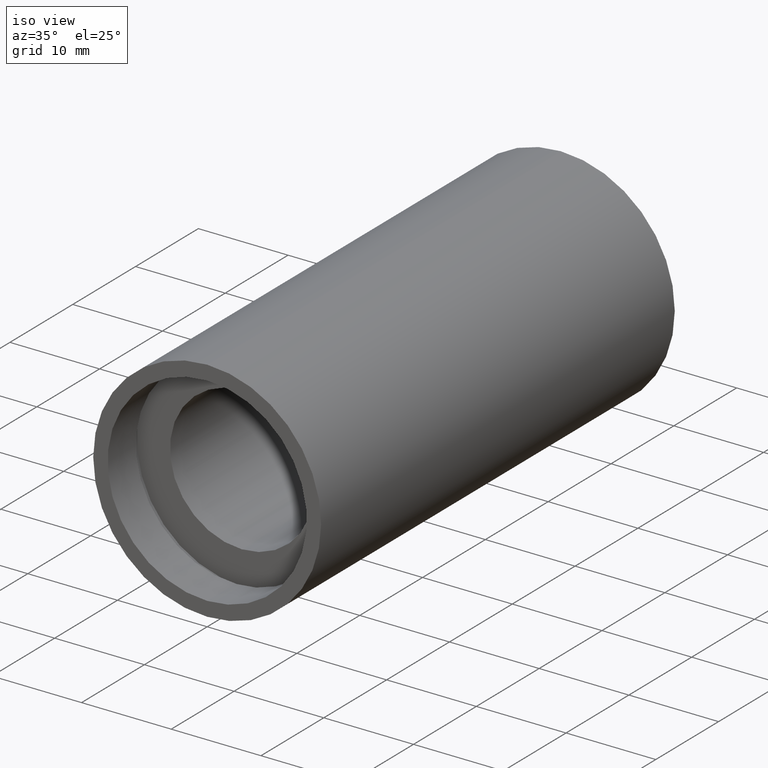
[diagram: clean part render]
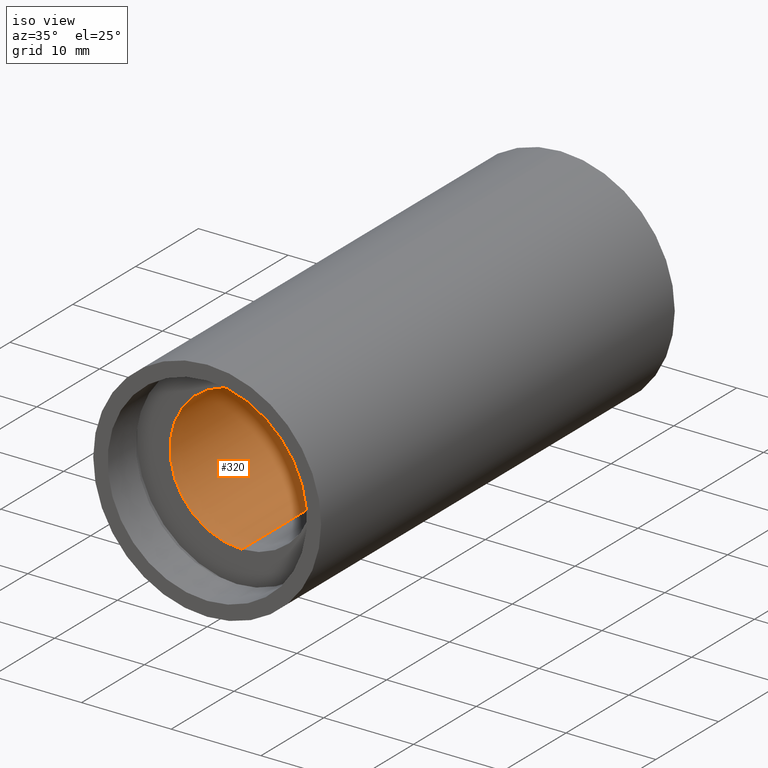
[diagram: same view with one face highlighted and labeled with its STEP entity id]
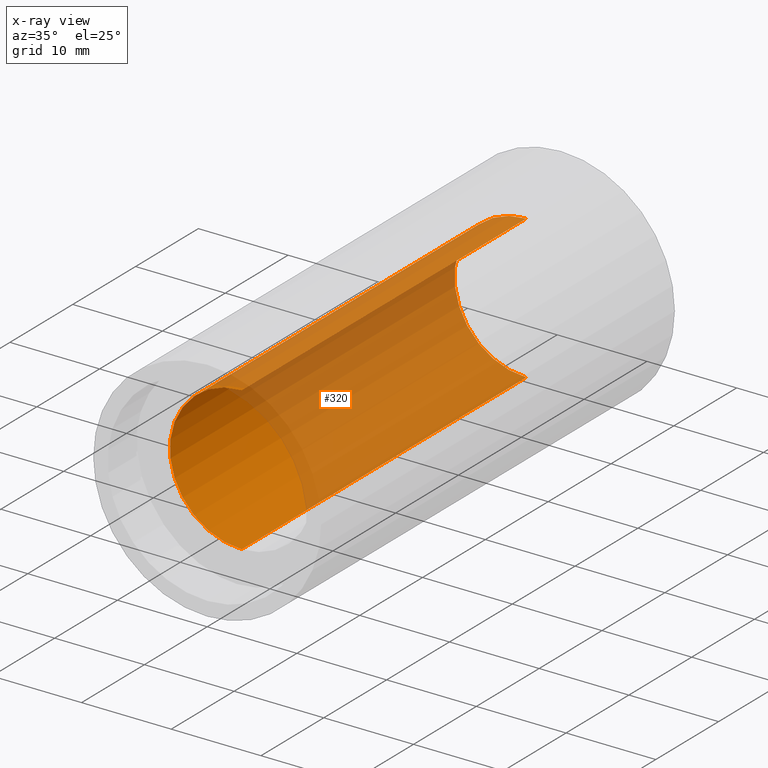
[diagram: x-ray of the same camera — body ghosted, the highlighted face saturated]
A machine part, iso view. The second image highlights one B-rep face of the part: STEP entity #320.
The next image is the same camera in x-ray: the body ghosted, the highlighted face saturated — about 72% of this face is hidden behind the body in this view.
In plain terms, the highlighted cylindrical surface (partial cylindrical patch) has radius 8 mm, axis along (-0, 1, -0).
Its self-contained STEP definition (entity closure, byte-faithful):
#2 = LINE ( 'NONE', #307, #295 ) ;
#8 = EDGE_CURVE ( 'NONE', #96, #45, #528, .T. ) ;
#9 = DIRECTION ( 'NONE',  ( 0.0000000000000000000, 0.0000000000000000000, 1.000000000000000000 ) ) ;
#45 = VERTEX_POINT ( 'NONE', #148 ) ;
#96 = VERTEX_POINT ( 'NONE', #452 ) ;
#105 = DIRECTION ( 'NONE',  ( 0.0000000000000000000, 0.0000000000000000000, 1.000000000000000000 ) ) ;
#110 = EDGE_CURVE ( 'NONE', #408, #622, #338, .T. ) ;
#148 = CARTESIAN_POINT ( 'NONE',  ( 0.0000000000000000000, 50.79999999999998300, 8.000000000000019500 ) ) ;
#152 = DIRECTION ( 'NONE',  ( -0.0000000000000000000, 1.000000000000000000, -0.0000000000000000000 ) ) ;
#179 = CYLINDRICAL_SURFACE ( 'NONE', #426, 8.000000000000019500 ) ;
#237 = AXIS2_PLACEMENT_3D ( 'NONE', #445, #152, #9 ) ;
#250 = AXIS2_PLACEMENT_3D ( 'NONE', #388, #285, #105 ) ;
#256 = ORIENTED_EDGE ( 'NONE', *, *, #110, .F. ) ;
#261 = LINE ( 'NONE', #504, #537 ) ;
#285 = DIRECTION ( 'NONE',  ( -0.0000000000000000000, 1.000000000000000000, -0.0000000000000000000 ) ) ;
#295 = VECTOR ( 'NONE', #599, 1000.000000000000000 ) ;
#297 = CARTESIAN_POINT ( 'NONE',  ( 9.797174393178849300E-016, 5.499999999999976900, -8.000000000000019500 ) ) ;
#307 = CARTESIAN_POINT ( 'NONE',  ( 9.797174393178849300E-016, 161.3761669434274500, -8.000000000000019500 ) ) ;
#320 = ADVANCED_FACE ( 'NONE', ( #592 ), #179, .F. ) ;
#321 = ORIENTED_EDGE ( 'NONE', *, *, #498, .T. ) ;
#338 = CIRCLE ( 'NONE', #237, 8.000000000000019500 ) ;
#363 = CARTESIAN_POINT ( 'NONE',  ( 0.0000000000000000000, 161.3761669434274500, 0.0000000000000000000 ) ) ;
#374 = EDGE_LOOP ( 'NONE', ( #256, #321, #568, #572 ) ) ;
#388 = CARTESIAN_POINT ( 'NONE',  ( 0.0000000000000000000, 50.79999999999998300, 0.0000000000000000000 ) ) ;
#408 = VERTEX_POINT ( 'NONE', #297 ) ;
#423 = CARTESIAN_POINT ( 'NONE',  ( 0.0000000000000000000, 5.499999999999976900, 8.000000000000019500 ) ) ;
#426 = AXIS2_PLACEMENT_3D ( 'NONE', #363, #470, #621 ) ;
#445 = CARTESIAN_POINT ( 'NONE',  ( 0.0000000000000000000, 5.499999999999976900, 0.0000000000000000000 ) ) ;
#452 = CARTESIAN_POINT ( 'NONE',  ( 9.797174393178849300E-016, 50.79999999999998300, -8.000000000000019500 ) ) ;
#470 = DIRECTION ( 'NONE',  ( -0.0000000000000000000, 1.000000000000000000, -0.0000000000000000000 ) ) ;
#498 = EDGE_CURVE ( 'NONE', #408, #96, #2, .T. ) ;
#504 = CARTESIAN_POINT ( 'NONE',  ( 0.0000000000000000000, 161.3761669434274500, 8.000000000000019500 ) ) ;
#527 = EDGE_CURVE ( 'NONE', #622, #45, #261, .T. ) ;
#528 = CIRCLE ( 'NONE', #250, 8.000000000000019500 ) ;
#537 = VECTOR ( 'NONE', #545, 1000.000000000000000 ) ;
#545 = DIRECTION ( 'NONE',  ( -0.0000000000000000000, 1.000000000000000000, -0.0000000000000000000 ) ) ;
#568 = ORIENTED_EDGE ( 'NONE', *, *, #8, .T. ) ;
#572 = ORIENTED_EDGE ( 'NONE', *, *, #527, .F. ) ;
#592 = FACE_OUTER_BOUND ( 'NONE', #374, .T. ) ;
#599 = DIRECTION ( 'NONE',  ( -0.0000000000000000000, 1.000000000000000000, -0.0000000000000000000 ) ) ;
#621 = DIRECTION ( 'NONE',  ( 0.0000000000000000000, 0.0000000000000000000, 1.000000000000000000 ) ) ;
#622 = VERTEX_POINT ( 'NONE', #423 ) ;